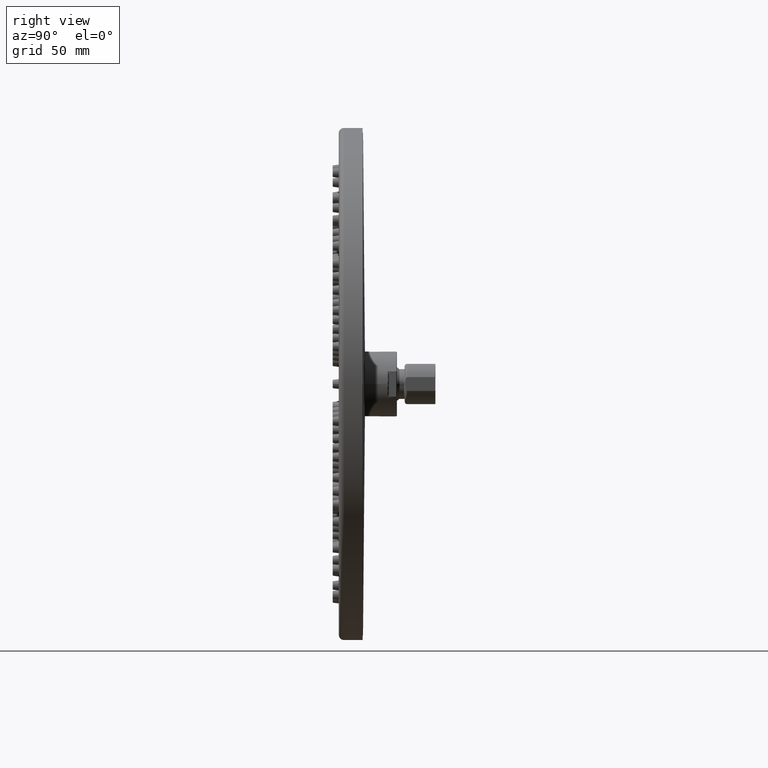
[diagram: clean part render]
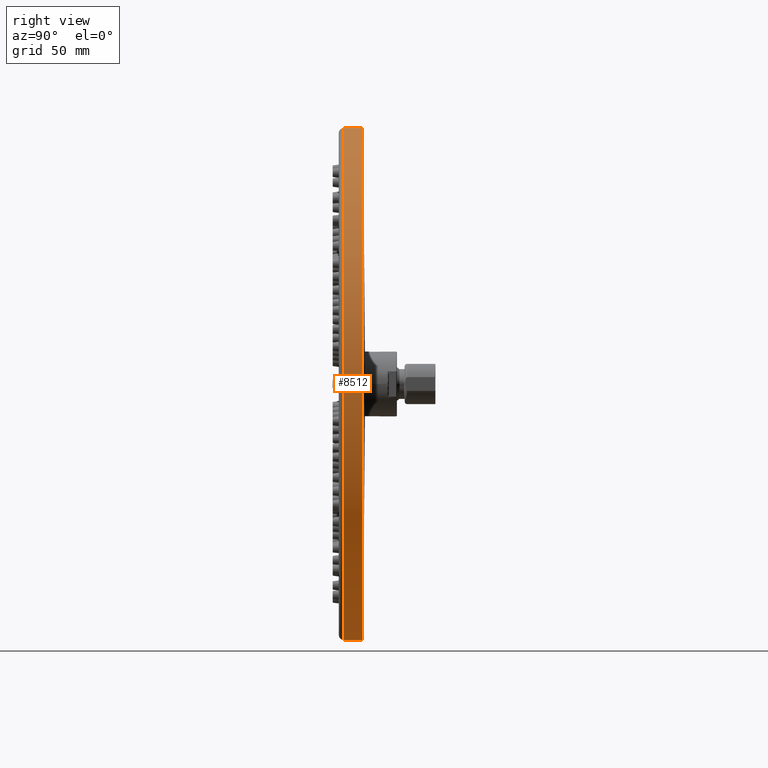
[diagram: same view with one face highlighted and labeled with its STEP entity id]
A machine part, right view. The second image highlights one B-rep face of the part: STEP entity #8512.
In plain terms, the highlighted cylindrical surface (partial cylindrical patch) has radius 150 mm, axis along (0, 1, 0).
Its self-contained STEP definition (entity closure, byte-faithful):
#2012=CARTESIAN_POINT('',(0.E0,3.E0,0.E0));
#2013=DIRECTION('',(0.E0,1.E0,0.E0));
#2014=DIRECTION('',(0.E0,0.E0,1.E0));
#2015=AXIS2_PLACEMENT_3D('',#2012,#2013,#2014);
#2022=DIRECTION('',(0.E0,-1.E0,0.E0));
#2023=VECTOR('',#2022,1.1E1);
#2024=CARTESIAN_POINT('',(1.530494452491E-14,1.4E1,-1.5E2));
#2025=LINE('',#2024,#2023);
#2026=DIRECTION('',(0.E0,-1.E0,0.E0));
#2027=VECTOR('',#2026,1.1E1);
#2028=CARTESIAN_POINT('',(2.067396604001E-13,1.4E1,1.5E2));
#2029=LINE('',#2028,#2027);
#2035=CARTESIAN_POINT('',(0.E0,1.4E1,0.E0));
#2036=DIRECTION('',(0.E0,-1.E0,0.E0));
#2037=DIRECTION('',(0.E0,0.E0,-1.E0));
#2038=AXIS2_PLACEMENT_3D('',#2035,#2036,#2037);
#6452=CARTESIAN_POINT('',(2.047962494034E-13,3.E0,-1.5E2));
#6453=VERTEX_POINT('',#6452);
#6454=CARTESIAN_POINT('',(2.480838239228E-13,3.E0,1.5E2));
#6455=VERTEX_POINT('',#6454);
#6456=CARTESIAN_POINT('',(2.067396604001E-13,1.4E1,1.5E2));
#6457=VERTEX_POINT('',#6456);
#6458=CARTESIAN_POINT('',(0.E0,1.4E1,-1.5E2));
#6459=VERTEX_POINT('',#6458);
#8498=CARTESIAN_POINT('',(0.E0,0.E0,0.E0));
#8499=DIRECTION('',(0.E0,1.E0,0.E0));
#8500=DIRECTION('',(0.E0,0.E0,-1.E0));
#8501=AXIS2_PLACEMENT_3D('',#8498,#8499,#8500);
#8502=CYLINDRICAL_SURFACE('',#8501,1.5E2);
#8503=ORIENTED_EDGE('',*,*,#8492,.F.);
#8505=ORIENTED_EDGE('',*,*,#8504,.F.);
#8507=ORIENTED_EDGE('',*,*,#8506,.F.);
#8509=ORIENTED_EDGE('',*,*,#8508,.T.);
#8510=EDGE_LOOP('',(#8503,#8505,#8507,#8509));
#8511=FACE_OUTER_BOUND('',#8510,.F.);
#8512=ADVANCED_FACE('',(#8511),#8502,.T.);
#2016=CIRCLE('',#2015,1.5E2);
#2039=CIRCLE('',#2038,1.5E2);
#8492=EDGE_CURVE('',#6455,#6453,#2016,.T.);
#8504=EDGE_CURVE('',#6457,#6455,#2029,.T.);
#8506=EDGE_CURVE('',#6459,#6457,#2039,.T.);
#8508=EDGE_CURVE('',#6459,#6453,#2025,.T.);